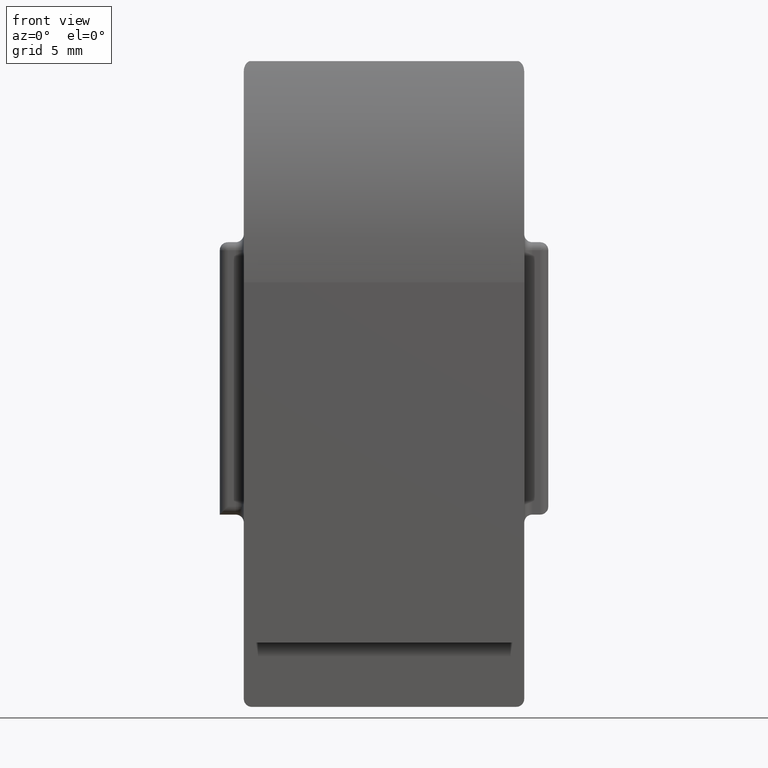
[diagram: clean part render]
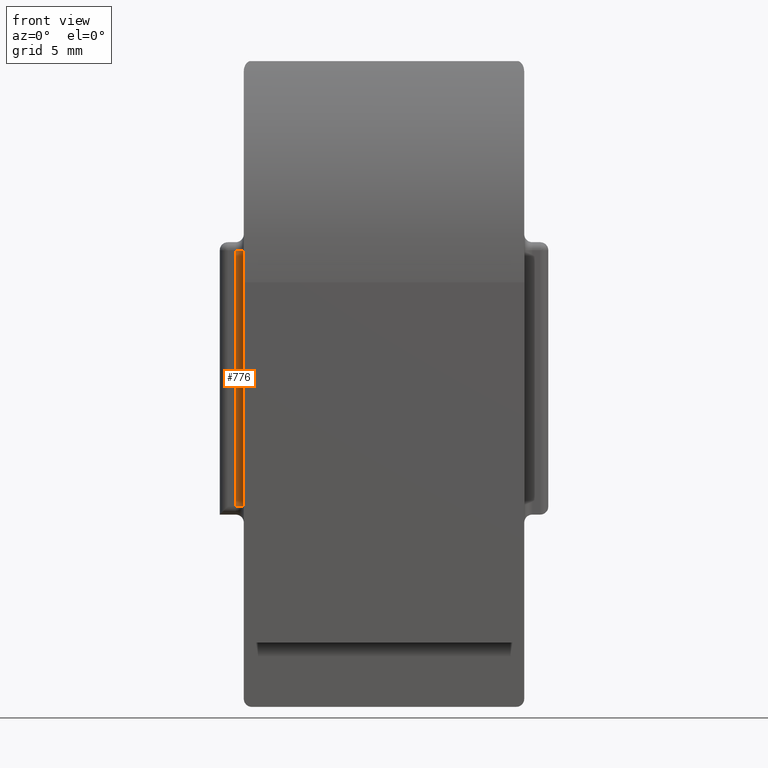
[diagram: same view with one face highlighted and labeled with its STEP entity id]
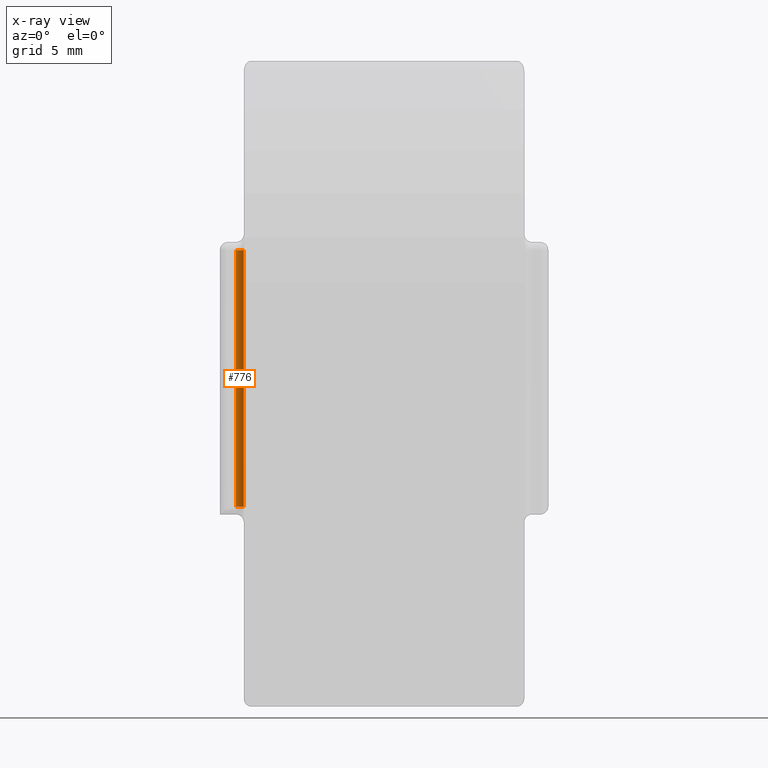
[diagram: x-ray of the same camera — body ghosted, the highlighted face saturated]
A machine part, front view. The second image highlights one B-rep face of the part: STEP entity #776.
The next image is the same camera in x-ray: the body ghosted, the highlighted face saturated — about 0% of this face is hidden behind the body in this view.
In plain terms, the highlighted cylindrical surface (edge-blend (fillet) strip) has radius 0.5 mm, axis along (0, -0, -1).
Its self-contained STEP definition (entity closure, byte-faithful):
#22 = EDGE_CURVE ( 'NONE', #2509, #2130, #1919, .T. ) ;
#120 = FACE_OUTER_BOUND ( 'NONE', #454, .T. ) ;
#124 = ORIENTED_EDGE ( 'NONE', *, *, #22, .F. ) ;
#135 = CARTESIAN_POINT ( 'NONE',  ( 0.0000000000000000000, 2.399999999999996800, 24.49999999999998900 ) ) ;
#454 = EDGE_LOOP ( 'NONE', ( #2510, #2760, #124, #520 ) ) ;
#520 = ORIENTED_EDGE ( 'NONE', *, *, #2201, .F. ) ;
#610 = CARTESIAN_POINT ( 'NONE',  ( -0.5000000000000004400, 2.899999999999994600, 8.499999999999976900 ) ) ;
#624 = CARTESIAN_POINT ( 'NONE',  ( -0.5000000000000004400, 2.899999999999997200, 24.49999999999998900 ) ) ;
#657 = DIRECTION ( 'NONE',  ( 1.000000000000000000, 0.0000000000000000000, 0.0000000000000000000 ) ) ;
#665 = DIRECTION ( 'NONE',  ( -0.0000000000000000000, -0.0000000000000000000, -1.000000000000000000 ) ) ;
#667 = CARTESIAN_POINT ( 'NONE',  ( -0.5000000000000004400, 2.399999999999995000, 8.499999999999976900 ) ) ;
#670 = VECTOR ( 'NONE', #2877, 1000.000000000000000 ) ;
#699 = LINE ( 'NONE', #2255, #670 ) ;
#776 = ADVANCED_FACE ( 'NONE', ( #120 ), #3074, .F. ) ;
#1342 = EDGE_CURVE ( 'NONE', #2130, #2720, #2383, .T. ) ;
#1417 = DIRECTION ( 'NONE',  ( -0.0000000000000000000, -1.275531967630004500E-016, -1.000000000000000000 ) ) ;
#1454 = CARTESIAN_POINT ( 'NONE',  ( 0.0000000000000000000, 2.399999999999995000, 7.999999999999976000 ) ) ;
#1679 = AXIS2_PLACEMENT_3D ( 'NONE', #667, #665, #657 ) ;
#1754 = CIRCLE ( 'NONE', #1679, 0.5000000000000000000 ) ;
#1804 = EDGE_CURVE ( 'NONE', #1862, #2720, #1754, .T. ) ;
#1862 = VERTEX_POINT ( 'NONE', #610 ) ;
#1919 = CIRCLE ( 'NONE', #2904, 0.5000000000000000000 ) ;
#2070 = CARTESIAN_POINT ( 'NONE',  ( 0.0000000000000000000, 2.399999999999995000, 8.499999999999976900 ) ) ;
#2130 = VERTEX_POINT ( 'NONE', #135 ) ;
#2201 = EDGE_CURVE ( 'NONE', #1862, #2509, #699, .T. ) ;
#2250 = DIRECTION ( 'NONE',  ( -1.000000000000000000, 0.0000000000000000000, 0.0000000000000000000 ) ) ;
#2251 = CARTESIAN_POINT ( 'NONE',  ( -0.5000000000000004400, 2.399999999999996800, 24.49999999999998900 ) ) ;
#2253 = DIRECTION ( 'NONE',  ( 0.0000000000000000000, 0.0000000000000000000, -1.000000000000000000 ) ) ;
#2255 = CARTESIAN_POINT ( 'NONE',  ( -0.5000000000000004400, 2.899999999999997200, 24.99999999999998900 ) ) ;
#2324 = CARTESIAN_POINT ( 'NONE',  ( -0.5000000000000004400, 2.399999999999996800, 24.99999999999998900 ) ) ;
#2336 = VECTOR ( 'NONE', #1417, 1000.000000000000000 ) ;
#2349 = DIRECTION ( 'NONE',  ( 0.0000000000000000000, 1.000000000000000000, 0.0000000000000000000 ) ) ;
#2383 = LINE ( 'NONE', #1454, #2336 ) ;
#2494 = DIRECTION ( 'NONE',  ( 0.0000000000000000000, -1.275531967630004500E-016, -1.000000000000000000 ) ) ;
#2509 = VERTEX_POINT ( 'NONE', #624 ) ;
#2510 = ORIENTED_EDGE ( 'NONE', *, *, #1804, .T. ) ;
#2720 = VERTEX_POINT ( 'NONE', #2070 ) ;
#2760 = ORIENTED_EDGE ( 'NONE', *, *, #1342, .F. ) ;
#2840 = AXIS2_PLACEMENT_3D ( 'NONE', #2324, #2494, #2349 ) ;
#2877 = DIRECTION ( 'NONE',  ( -0.0000000000000000000, 1.275531967630004500E-016, 1.000000000000000000 ) ) ;
#2904 = AXIS2_PLACEMENT_3D ( 'NONE', #2251, #2253, #2250 ) ;
#3074 = CYLINDRICAL_SURFACE ( 'NONE', #2840, 0.5000000000000000000 ) ;